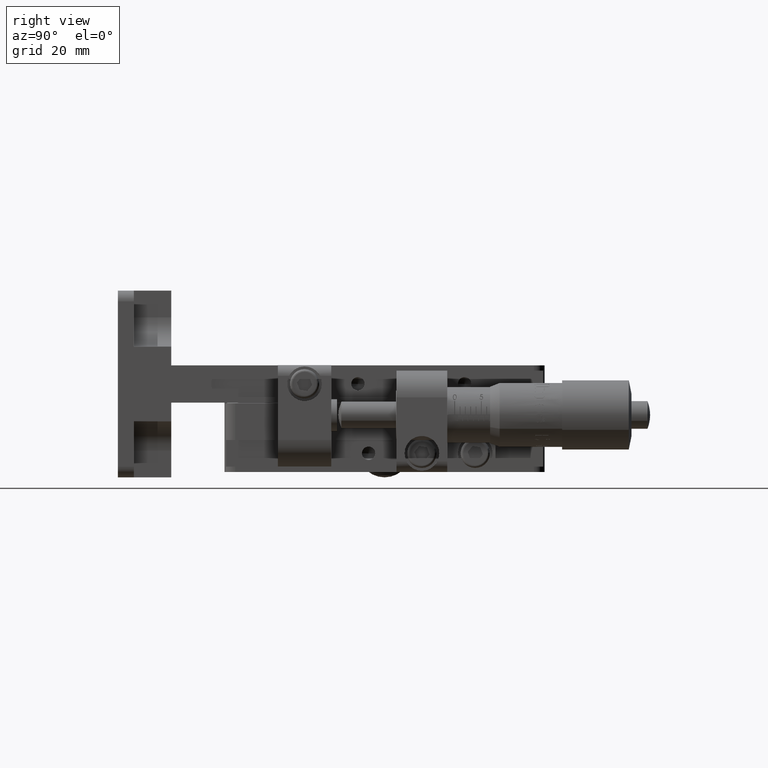
[diagram: clean part render]
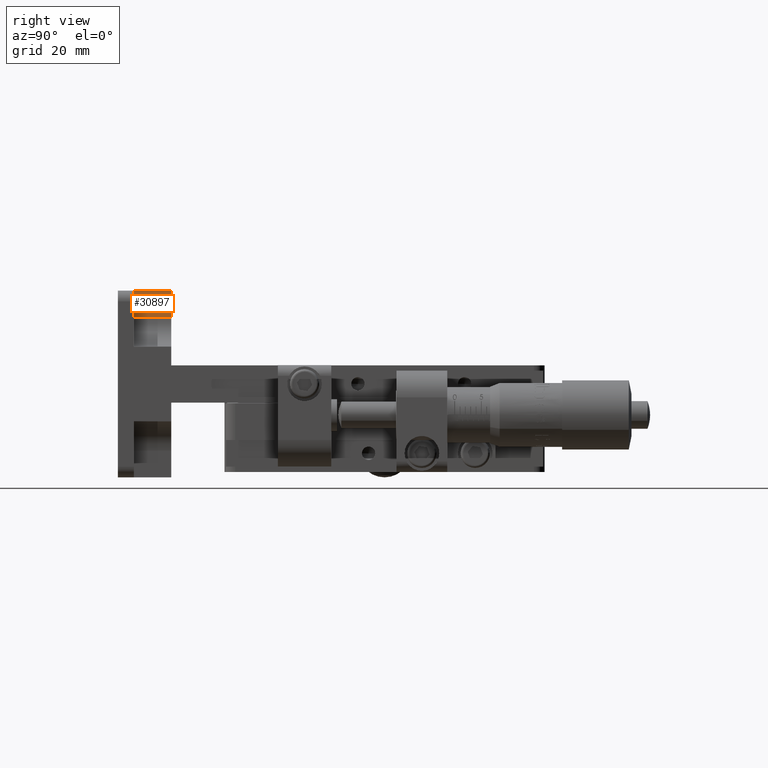
[diagram: same view with one face highlighted and labeled with its STEP entity id]
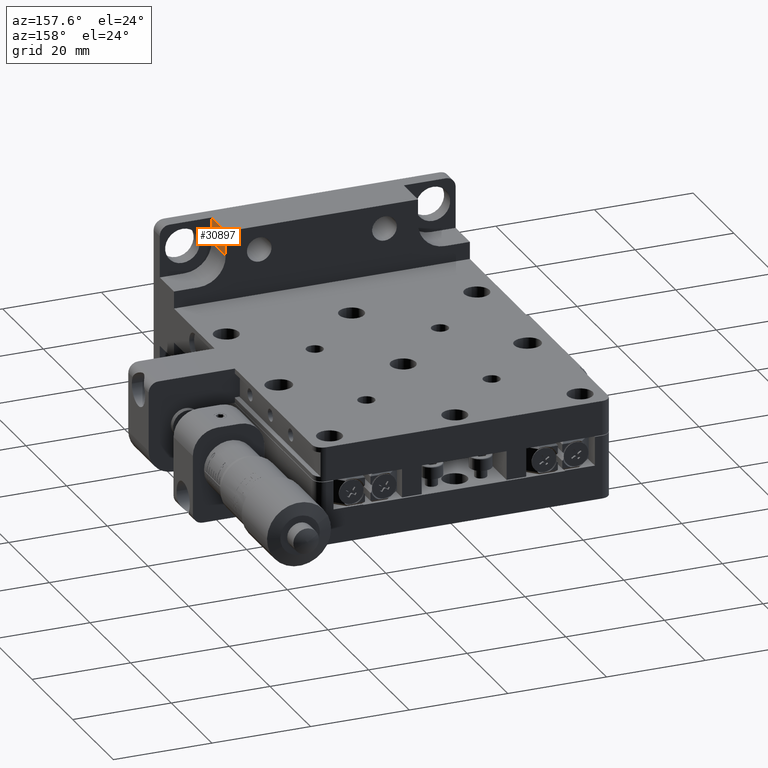
[diagram: same view with one face highlighted and labeled with its STEP entity id]
A machine part, right view. The second image highlights one B-rep face of the part: STEP entity #30897.
A second angle (auxiliary view) of the same face is appended — the face is thin or edge-on in the first view.
In plain terms, the highlighted planar face has unit normal (-1, 0, -0).
Its self-contained STEP definition (entity closure, byte-faithful):
#500 = ORIENTED_EDGE ( 'NONE', *, *, #8030, .T. ) ;
#995 = CARTESIAN_POINT ( 'NONE',  ( 19.49999999999992500, 1.423725721956124800E-013, 12.49999999999994800 ) ) ;
#1937 = VERTEX_POINT ( 'NONE', #995 ) ;
#6660 = LINE ( 'NONE', #14915, #32998 ) ;
#8030 = EDGE_CURVE ( 'NONE', #1937, #60248, #49336, .T. ) ;
#11497 = PLANE ( 'NONE',  #17976 ) ;
#12601 = CARTESIAN_POINT ( 'NONE',  ( 19.49999999999995400, 1.423725721956124600E-013, 12.49999999999994800 ) ) ;
#13437 = VERTEX_POINT ( 'NONE', #45134 ) ;
#14915 = CARTESIAN_POINT ( 'NONE',  ( 19.49999999999992500, -6.999999999999873000, 12.49999999999989300 ) ) ;
#15413 = DIRECTION ( 'NONE',  ( 6.642605205451730300E-015, -1.299185760018475900E-014, -1.000000000000000000 ) ) ;
#17481 = DIRECTION ( 'NONE',  ( -6.642605205451730300E-015, 1.299185760018475900E-014, 1.000000000000000000 ) ) ;
#17976 = AXIS2_PLACEMENT_3D ( 'NONE', #53321, #49004, #15413 ) ;
#23260 = DIRECTION ( 'NONE',  ( -6.642605205451730300E-015, 1.299185760018475900E-014, 1.000000000000000000 ) ) ;
#23699 = ORIENTED_EDGE ( 'NONE', *, *, #58183, .F. ) ;
#24340 = VECTOR ( 'NONE', #17481, 1000.000000000000000 ) ;
#24923 = LINE ( 'NONE', #39927, #46919 ) ;
#25157 = CARTESIAN_POINT ( 'NONE',  ( 19.49999999999992500, 2.073318601965365800E-013, 17.49999999999998600 ) ) ;
#25902 = VECTOR ( 'NONE', #23260, 1000.000000000000000 ) ;
#26331 = ORIENTED_EDGE ( 'NONE', *, *, #53923, .T. ) ;
#27752 = CARTESIAN_POINT ( 'NONE',  ( 19.49999999999995400, -6.999999999999873000, 12.49999999999989300 ) ) ;
#30897 = ADVANCED_FACE ( 'NONE', ( #39839 ), #11497, .F. ) ;
#32998 = VECTOR ( 'NONE', #37566, 1000.000000000000000 ) ;
#37566 = DIRECTION ( 'NONE',  ( -1.026956297779327700E-015, 1.000000000000000000, 1.059534132045691100E-014 ) ) ;
#39839 = FACE_OUTER_BOUND ( 'NONE', #45500, .T. ) ;
#39927 = CARTESIAN_POINT ( 'NONE',  ( 19.49999999999992500, -6.999999999999802800, 17.49999999999986500 ) ) ;
#45134 = CARTESIAN_POINT ( 'NONE',  ( 19.49999999999992500, -6.999999999999802800, 17.49999999999986500 ) ) ;
#45500 = EDGE_LOOP ( 'NONE', ( #500, #23699, #60568, #26331 ) ) ;
#46919 = VECTOR ( 'NONE', #58962, 1000.000000000000000 ) ;
#46921 = EDGE_CURVE ( 'NONE', #59335, #13437, #47888, .T. ) ;
#47888 = LINE ( 'NONE', #27752, #25902 ) ;
#49004 = DIRECTION ( 'NONE',  ( -1.000000000000000000, 1.026956297779219600E-015, -6.642605205451743700E-015 ) ) ;
#49336 = LINE ( 'NONE', #12601, #24340 ) ;
#49389 = CARTESIAN_POINT ( 'NONE',  ( 19.49999999999992500, -6.999999999999873000, 12.49999999999989300 ) ) ;
#53321 = CARTESIAN_POINT ( 'NONE',  ( 19.49999999999995400, -6.999999999999873000, 12.49999999999989300 ) ) ;
#53923 = EDGE_CURVE ( 'NONE', #59335, #1937, #6660, .T. ) ;
#58183 = EDGE_CURVE ( 'NONE', #13437, #60248, #24923, .T. ) ;
#58962 = DIRECTION ( 'NONE',  ( -1.026956297779327700E-015, 1.000000000000000000, 1.059534132045691100E-014 ) ) ;
#59335 = VERTEX_POINT ( 'NONE', #49389 ) ;
#60248 = VERTEX_POINT ( 'NONE', #25157 ) ;
#60568 = ORIENTED_EDGE ( 'NONE', *, *, #46921, .F. ) ;